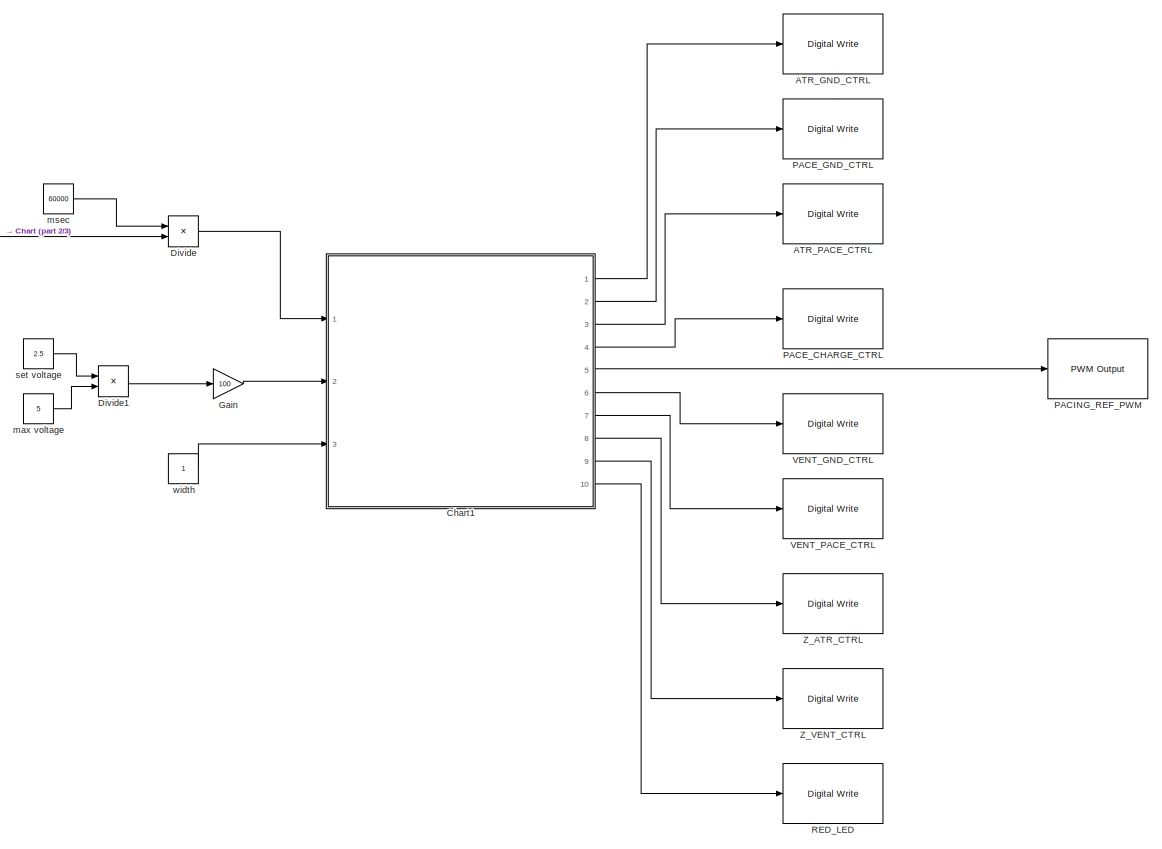
[diagram: root canvas - part 1/3, right side, full height]
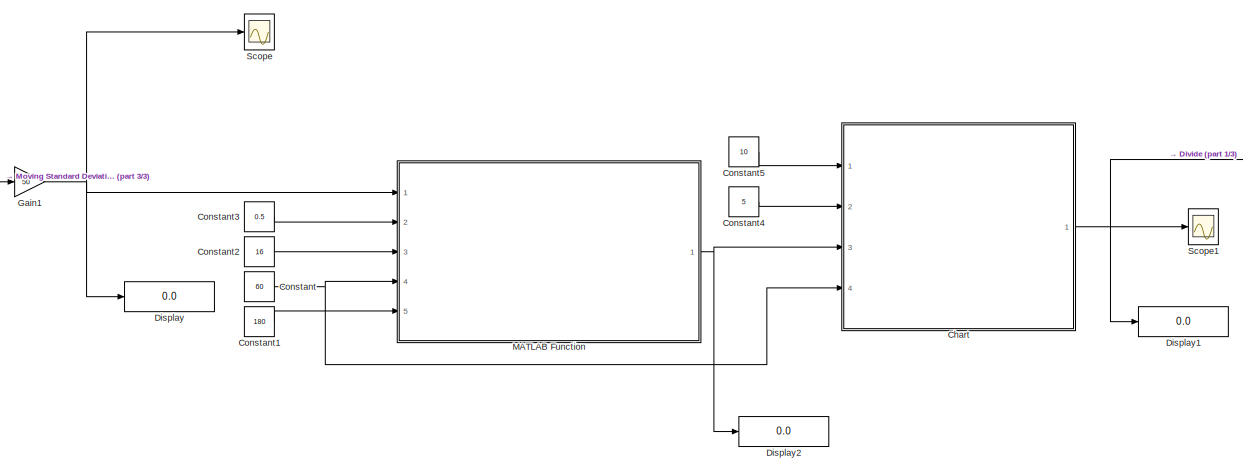
[diagram: root canvas - part 2/3, central region]
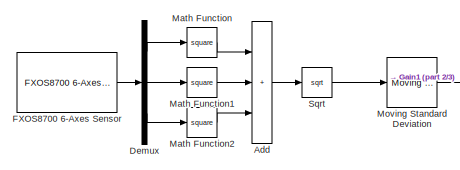
[diagram: root canvas - part 3/3, top left region]
MODEL slx_0194e5b6eb0a
KIND model
CONFIG AbsTol = auto
CONFIG EnableMultiTasking = on
CONFIG FixedStep = 1e-3
CONFIG MaxStep = auto
CONFIG MinStep = auto
CONFIG RelTol = 1e-3
CONFIG SampleTimeConstraint = Unconstrained
CONFIG Solver = FixedStepAuto
CONFIG SolverName = FixedStepAuto
CONFIG StartTime = 0.0
CONFIG StopTime = 60
BLOCK [Reference] ATR_GND_CTRL  REF=frdmk64flib/Digital Write
  Ports = [1]
  SourceBlock = frdmk64flib/Digital Write
  SourceProductBaseCode = EC_FRDM_K64F
  SourceType = freedomk64f.DigitalWrite
BLOCK [Reference] ATR_PACE_CTRL  REF=frdmk64flib/Digital Write
  Ports = [1]
  SourceBlock = frdmk64flib/Digital Write
  SourceProductBaseCode = EC_FRDM_K64F
  SourceType = freedomk64f.DigitalWrite
BLOCK [Sum] Add
  IconShape = rectangular
  Inputs = +++
  Ports = [3, 1]
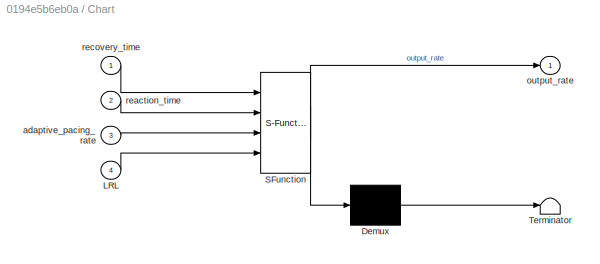
BLOCK [SubSystem] Chart
  ErrorFcn = Stateflow.Translate.translate
  PermitHierarchicalResolution = ExplicitOnly
  Ports = [4, 1]
  RequestExecContextInheritance = off
  SFBlockType = Chart
  TreatAsAtomicUnit = on
BLOCK [Demux] Chart/ Demux 
  Outputs = 1
  Ports = [1, 1]
BLOCK [S-Function] Chart/ SFunction 
  EnableBusSupport = on
  FunctionName = sf_sfun
  PortCounts = [4 2]
  Ports = [4, 2]
  SFcnIsStateOwnerBlock = off
  SFunctionDeploymentMode = off
  Tag = Stateflow S-Function 3
BLOCK [Terminator] Chart/ Terminator 
BLOCK [Inport] Chart/LRL
  Port = 4
BLOCK [Inport] Chart/adaptive_pacing_rate
  Port = 3
BLOCK [Outport] Chart/output_rate
BLOCK [Inport] Chart/reaction_time
  Port = 2
BLOCK [Inport] Chart/recovery_time
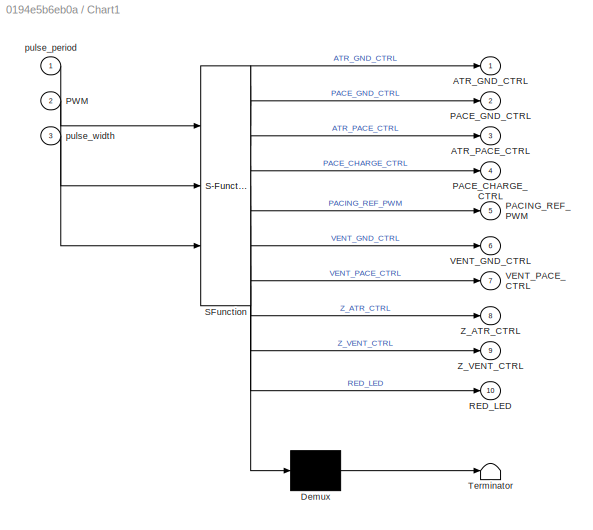
BLOCK [SubSystem] Chart1
  ErrorFcn = Stateflow.Translate.translate
  PermitHierarchicalResolution = ExplicitOnly
  Ports = [3, 10]
  RequestExecContextInheritance = off
  SFBlockType = Chart
  TreatAsAtomicUnit = on
BLOCK [Demux] Chart1/ Demux 
  Outputs = 1
  Ports = [1, 1]
BLOCK [S-Function] Chart1/ SFunction 
  EnableBusSupport = on
  FunctionName = sf_sfun
  PortCounts = [3 11]
  Ports = [3, 11]
  SFcnIsStateOwnerBlock = off
  SFunctionDeploymentMode = off
  Tag = Stateflow S-Function 1
BLOCK [Terminator] Chart1/ Terminator 
BLOCK [Outport] Chart1/ATR_GND_CTRL
BLOCK [Outport] Chart1/ATR_PACE_CTRL
  Port = 3
BLOCK [Outport] Chart1/PACE_CHARGE_CTRL
  Port = 4
BLOCK [Outport] Chart1/PACE_GND_CTRL
  Port = 2
BLOCK [Outport] Chart1/PACING_REF_PWM
  Port = 5
BLOCK [Inport] Chart1/PWM
  Port = 2
BLOCK [Outport] Chart1/RED_LED
  Port = 10
BLOCK [Outport] Chart1/VENT_GND_CTRL
  Port = 6
BLOCK [Outport] Chart1/VENT_PACE_CTRL
  Port = 7
BLOCK [Outport] Chart1/Z_ATR_CTRL
  Port = 8
BLOCK [Outport] Chart1/Z_VENT_CTRL
  Port = 9
BLOCK [Inport] Chart1/pulse_period
BLOCK [Inport] Chart1/pulse_width
  Port = 3
BLOCK [Constant] Constant
  Value = 60
BLOCK [Constant] Constant1
  Value = 180
BLOCK [Constant] Constant2
  Value = 16
BLOCK [Constant] Constant3
  Value = 0.5
BLOCK [Constant] Constant4
  Value = 5
BLOCK [Constant] Constant5
  Value = 10
BLOCK [Demux] Demux
  Outputs = 3
  Ports = [1, 3]
BLOCK [Display] Display
  Decimation = 1
  Ports = [1]
BLOCK [Display] Display1
  Decimation = 1
  Ports = [1]
BLOCK [Display] Display2
  Decimation = 1
  Ports = [1]
BLOCK [Product] Divide
  Inputs = */
  Ports = [2, 1]
BLOCK [Product] Divide1
  Inputs = */
  Ports = [2, 1]
BLOCK [Reference] FXOS8700 6-Axes Sensor  REF=frdmk64flib/FXOS8700 6-Axes Sensor
  Ports = [0, 1]
  SourceBlock = frdmk64flib/FXOS8700 6-Axes Sensor
  SourceProductBaseCode = EC_FRDM_K64F
  SourceType = freedomk64f.fxos8700
BLOCK [Gain] Gain
  Gain = 100
BLOCK [Gain] Gain1
  Gain = 50
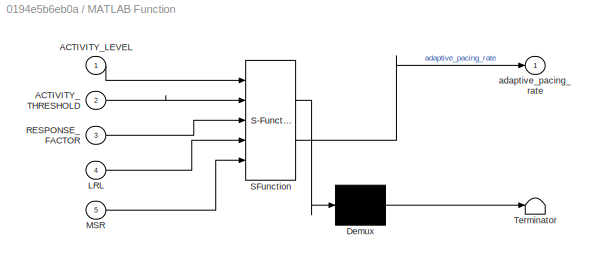
BLOCK [SubSystem] MATLAB Function
  ErrorFcn = Stateflow.Translate.translate
  PermitHierarchicalResolution = ExplicitOnly
  Ports = [5, 1]
  RequestExecContextInheritance = off
  SFBlockType = MATLAB Function
  TreatAsAtomicUnit = on
BLOCK [Demux] MATLAB Function/ Demux 
  Outputs = 1
  Ports = [1, 1]
BLOCK [S-Function] MATLAB Function/ SFunction 
  EnableBusSupport = on
  FunctionName = sf_sfun
  PortCounts = [5 2]
  Ports = [5, 2]
  SFcnIsStateOwnerBlock = off
  SFunctionDeploymentMode = off
  Tag = Stateflow S-Function 2
BLOCK [Terminator] MATLAB Function/ Terminator 
BLOCK [Inport] MATLAB Function/ACTIVITY_LEVEL
BLOCK [Inport] MATLAB Function/ACTIVITY_THRESHOLD
  Port = 2
BLOCK [Inport] MATLAB Function/LRL
  Port = 4
BLOCK [Inport] MATLAB Function/MSR
  Port = 5
BLOCK [Inport] MATLAB Function/RESPONSE_FACTOR
  Port = 3
BLOCK [Outport] MATLAB Function/adaptive_pacing_rate
  VectorParamsAs1DForOutWhenUnconnected = off
BLOCK [Math] Math Function
  Operator = square
  Ports = [1, 1]
BLOCK [Math] Math Function1
  Operator = square
  Ports = [1, 1]
BLOCK [Math] Math Function2
  Operator = square
  Ports = [1, 1]
BLOCK [Reference] Moving Standard Deviation  REF=dspstat3/Moving
Standard
Deviation
  Ports = [1, 1]
  SourceBlock = dspstat3/Moving\nStandard\nDeviation
  SourceProductBaseCode = DS
  SourceType = dsp.simulink.MovingStandardDeviation
BLOCK [Reference] PACE_CHARGE_CTRL  REF=frdmk64flib/Digital Write
  Ports = [1]
  SourceBlock = frdmk64flib/Digital Write
  SourceProductBaseCode = EC_FRDM_K64F
  SourceType = freedomk64f.DigitalWrite
BLOCK [Reference] PACE_GND_CTRL  REF=frdmk64flib/Digital Write
  Ports = [1]
  SourceBlock = frdmk64flib/Digital Write
  SourceProductBaseCode = EC_FRDM_K64F
  SourceType = freedomk64f.DigitalWrite
BLOCK [Reference] PACING_REF_PWM  REF=frdmk64flib/PWM Output
  Ports = [1]
  SourceBlock = frdmk64flib/PWM Output
  SourceProductBaseCode = EC_FRDM_K64F
  SourceType = freedomk64f.PWMOutput
BLOCK [Reference] RED_LED  REF=frdmk64flib/Digital Write
  Ports = [1]
  SourceBlock = frdmk64flib/Digital Write
  SourceProductBaseCode = EC_FRDM_K64F
  SourceType = freedomk64f.DigitalWrite
BLOCK [Scope] Scope
  Floating = off
  NumInputPorts = 1
  Ports = [1]
  ScopeSpecificationString = Simulink.scopes.TimeScopeBlockCfg('CurrentConfiguration', extmgr.ConfigurationSet(extmgr.Configuration('Core','General UI',true),extmgr.Configuration('Core','Source UI',true),extmgr.Configuration('Sources','WiredSimulink',true),extmgr.Configuration('Visuals','Time Domain',true,'SerializedDisplays',{struct('MinYLimReal','-11.01067','MaxYLimReal','29.48864','YLabelReal','','MinYLimMag','0.00000','Ma...<+1507ch>
BLOCK [Scope] Scope1
  Floating = off
  NumInputPorts = 1
  Ports = [1]
  ScopeSpecificationString = Simulink.scopes.TimeScopeBlockCfg('CurrentConfiguration', extmgr.ConfigurationSet(extmgr.Configuration('Core','General UI',true),extmgr.Configuration('Core','Source UI',true),extmgr.Configuration('Sources','WiredSimulink',true,'DataLoggingVariableName','ScopeData1'),extmgr.Configuration('Visuals','Time Domain',true,'SerializedDisplays',{struct('MinYLimReal','-7.75138','MaxYLimReal','129.46627','YL...<+1550ch>
BLOCK [Sqrt] Sqrt
BLOCK [Reference] VENT_GND_CTRL  REF=frdmk64flib/Digital Write
  Ports = [1]
  SourceBlock = frdmk64flib/Digital Write
  SourceProductBaseCode = EC_FRDM_K64F
  SourceType = freedomk64f.DigitalWrite
BLOCK [Reference] VENT_PACE_CTRL  REF=frdmk64flib/Digital Write
  Ports = [1]
  SourceBlock = frdmk64flib/Digital Write
  SourceProductBaseCode = EC_FRDM_K64F
  SourceType = freedomk64f.DigitalWrite
BLOCK [Reference] Z_ATR_CTRL  REF=frdmk64flib/Digital Write
  Ports = [1]
  SourceBlock = frdmk64flib/Digital Write
  SourceProductBaseCode = EC_FRDM_K64F
  SourceType = freedomk64f.DigitalWrite
BLOCK [Reference] Z_VENT_CTRL  REF=frdmk64flib/Digital Write
  Ports = [1]
  SourceBlock = frdmk64flib/Digital Write
  SourceProductBaseCode = EC_FRDM_K64F
  SourceType = freedomk64f.DigitalWrite
BLOCK [Constant] max voltage
  Value = 5
BLOCK [Constant] msec
  Value = 60000
BLOCK [Constant] set voltage
  Value = 2.5
BLOCK [Constant] width
LINE Add:1 -> Sqrt:1
LINE Chart1:1 -> ATR_GND_CTRL:1
LINE Chart1:10 -> RED_LED:1
LINE Chart1:2 -> PACE_GND_CTRL:1
LINE Chart1:3 -> ATR_PACE_CTRL:1
LINE Chart1:4 -> PACE_CHARGE_CTRL:1
LINE Chart1:5 -> PACING_REF_PWM:1
LINE Chart1:6 -> VENT_GND_CTRL:1
LINE Chart1:7 -> VENT_PACE_CTRL:1
LINE Chart1:8 -> Z_ATR_CTRL:1
LINE Chart1:9 -> Z_VENT_CTRL:1
NET Chart:1 -> Display1:1, Divide:2, Scope1:1
LINE Constant1:1 -> MATLAB Function:5
LINE Constant2:1 -> MATLAB Function:3
LINE Constant3:1 -> MATLAB Function:2
LINE Constant4:1 -> Chart:2
LINE Constant5:1 -> Chart:1
NET Constant:1 -> Chart:4, MATLAB Function:4
LINE Demux:1 -> Math Function:1
LINE Demux:2 -> Math Function1:1
LINE Demux:3 -> Math Function2:1
LINE Divide1:1 -> Gain:1
LINE Divide:1 -> Chart1:1
LINE FXOS8700 6-Axes Sensor:1 -> Demux:1
NET Gain1:1 -> Display:1, MATLAB Function:1, Scope:1
LINE Gain:1 -> Chart1:2
NET MATLAB Function:1 -> Chart:3, Display2:1
LINE Math Function1:1 -> Add:2
LINE Math Function2:1 -> Add:3
LINE Math Function:1 -> Add:1
LINE Moving Standard Deviation:1 -> Gain1:1
LINE Sqrt:1 -> Moving Standard Deviation:1
LINE max voltage:1 -> Divide1:2
LINE msec:1 -> Divide:1
LINE set voltage:1 -> Divide1:1
LINE width:1 -> Chart1:3
note: NET lines group one-source signal fan-out (src -> all destinations, sorted); 1:1 wires keep LINE
CHART Chart1 states=2 transitions=3
  STATE_LABEL 'ChargeDishcharge\nentry:\n%C22\nATR_PACE_CTRL = false;\nVENT_PACE_CTRL = false;\nPACING_REF_PWM = PWM;\nPACE_CHARGE_CTRL = true;\n%C21\nPACE_GND_CTRL = true;\nVENT_PACE_CTRL = false;\nZ_ATR_CTRL = false;\nZ_VENT_CTRL = false;\nATR_GND_CTRL = true;\nVENT_GND_CTRL = false;\n%RED LED\nRED_LED = false;\n'
  STATE_LABEL 'AVpacing\nentry:\nPACE_CHARGE_CTRL = false;\nPACE_GND_CTRL = true;\nATR_PACE_CTRL = true;\nATR_GND_CTRL = false;\nZ_ATR_CTRL = false;\nZ_VENT_CTRL = false;\nVENT_GND_CTRL = false;\nVENT_PACE_CTRL = false;\nPACING_REF_PWM = PWM;\nRED_LED = true;'
CHART MATLAB Function states=1 transitions=1
  STATE_LABEL 'eML_blk_kernel()'
  STATE_LABEL 'SCRIPT:\nfunction adaptive_pacing_rate = fcn(ACTIVITY_LEVEL, ACTIVITY_THRESHOLD, RESPONSE_FACTOR, LRL , MSR)\n    if ACTIVITY_LEVEL <= ACTIVITY_THRESHOLD\n        adaptive_pacing_rate = LRL; \n    else\n        slope = 2.5*RESPONSE_FACTOR;\n        b = LRL - (slope*ACTIVITY_THRESHOLD);\n        linear_rate_response = (slope*ACTIVITY_LEVEL) + b;\n        if(linear_rate_response >= MSR)\n           adaptive_...<+113ch>'
CHART Chart states=4 transitions=6
  STATE_LABEL 'IDLE\nentry:\noutput_rate = LRL;'
  STATE_LABEL 'INIT\nentry:\n%The slope of the time response curves\nstep_up = abs((adaptive_pacing_rate - output_rate)/reaction_time);\nstep_down = abs((adaptive_pacing_rate - output_rate)/recovery_time);\n'
  STATE_LABEL 'STEP_DOWN\nentry:\noutput_rate = output_rate - step_down;'
  STATE_LABEL 'STEP_UP\nentry:\noutput_rate = output_rate + step_up;'
CHART  states=0 transitions=0
CHART  states=0 transitions=0
CHART  states=0 transitions=0
